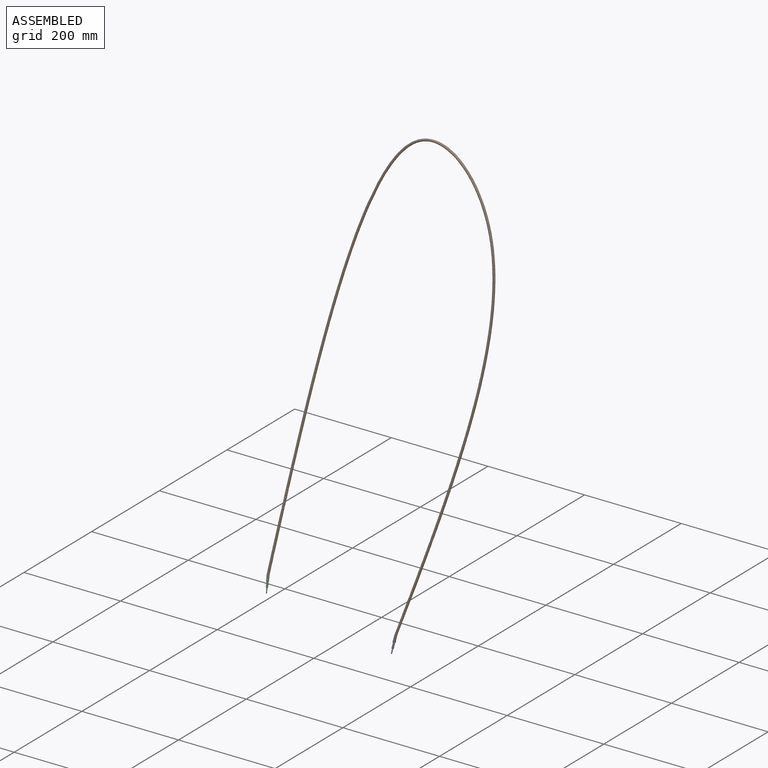
[diagram: assembled view]
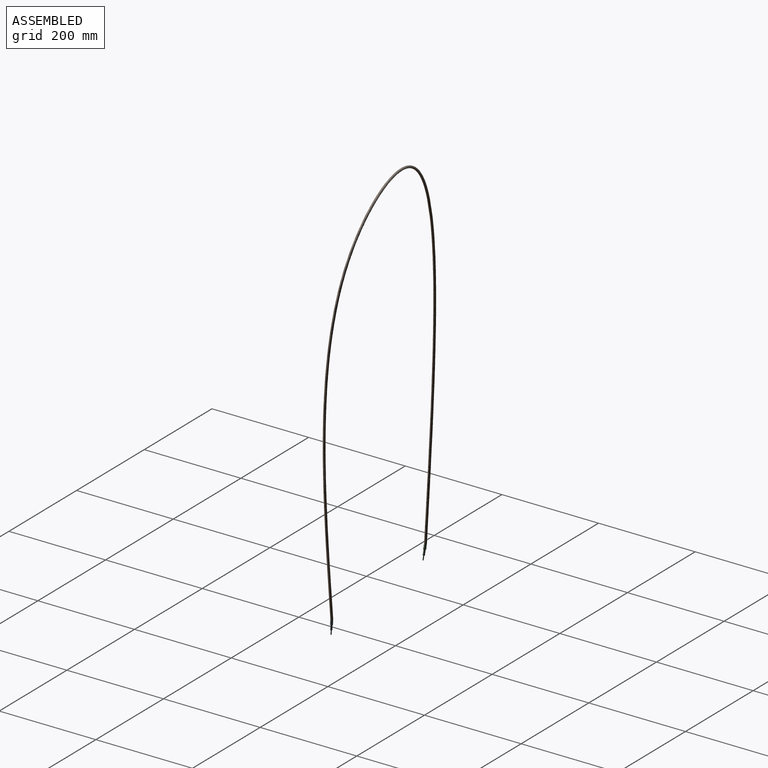
[diagram: assembled view, second angle]
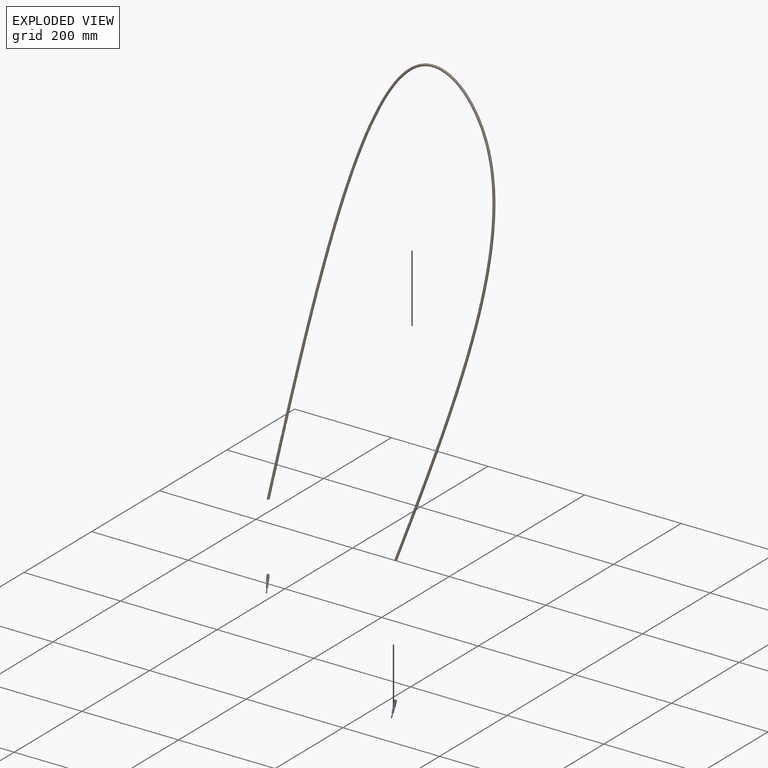
[diagram: exploded view]
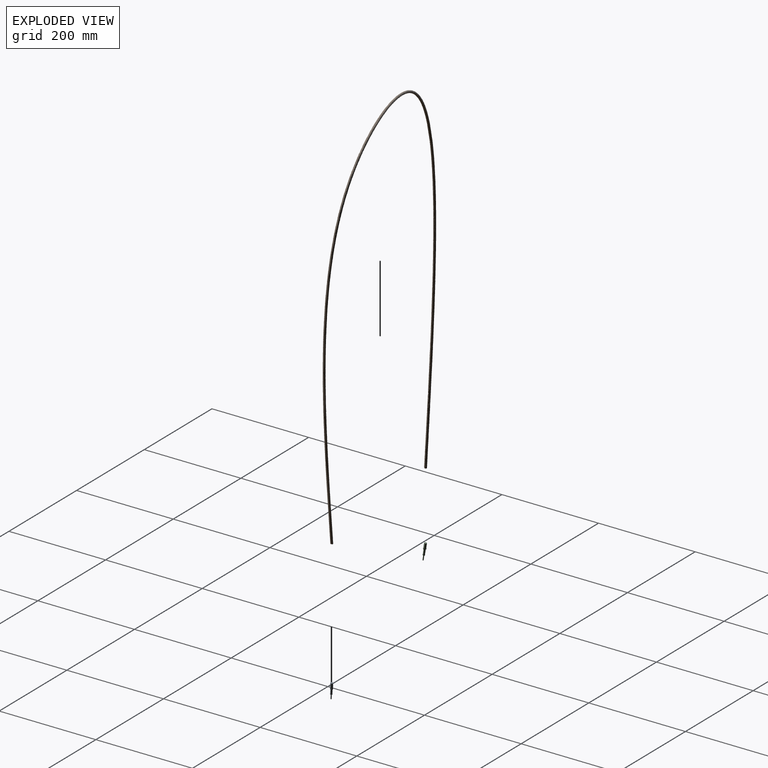
[diagram: exploded view, second angle]
ASSEMBLY  parts=3 mates=2
PART A: 31 faces, bbox 5.8x5x34 mm
  f0: cylinder r=2.5mm len=10mm, axis (0,0,1), area 157.1mm2, adj f1,f2,f3,f4,f5,f6,f14
  f1: plane 5x5mm, normal (0,0,1), area 19.6mm2, adj f0
  f2: plane 2.17x1.25mm, normal (0,0,1), area 0.3mm2, adj f0,f9,f10
  f3: plane 2.17x1.25mm, normal (0,0,1), area 0.3mm2, adj f0,f8,f9
  f4: plane 2.5x0.72mm, normal (0,0,1), area 0.3mm2, adj f0,f7,f8
  f5: plane 2.17x1.25mm, normal (0,0,1), area 0.3mm2, adj f0,f7,f12
  f6: plane 2.17x1.25mm, normal (0,0,1), area 0.3mm2, adj f0,f11,f12
  f7: plane 2.5x2.5mm, normal (-0.87,-0.5,0), area 7.2mm2, adj f4,f5,f8,f12,f13
  f8: plane 2.5x2.5mm, normal (-0.87,0.5,0), area 7.2mm2, adj f3,f4,f7,f9,f13
  f9: plane 2.89x2.5mm, normal (0,1,0), area 7.2mm2, adj f2,f3,f8,f10,f13
  f10: plane 2.5x2.5mm, normal (0.87,0.5,0), area 7.2mm2, adj f2,f9,f11,f13,f14
  f11: plane 2.5x2.5mm, normal (0.87,-0.5,0), area 7.2mm2, adj f6,f10,f12,f13,f14
  f12: plane 2.89x2.5mm, normal (0,-1,0), area 7.2mm2, adj f5,f6,f7,f11,f13
  f13: plane 5.77x5mm, normal (0,0,-1), area 10.3mm2, adj f7,f8,f9,f10,f11,f12,f15
  f14: plane 2.5x0.72mm, normal (0,0,1), area 0.3mm2, adj f0,f10,f11
  f15: cylinder r=1.9mm len=10mm, axis (0,0,1), area 119.4mm2, adj f13,f16,f17,f18,f19,f20,f21
  f16: plane 1.65x0.95mm, normal (0,0,1), area 0.2mm2, adj f15,f26,f27
  f17: plane 1.65x0.95mm, normal (0,0,1), area 0.2mm2, adj f15,f22,f27
  f18: plane 1.9x0.55mm, normal (0,0,1), area 0.2mm2, adj f15,f22,f23
  f19: plane 1.65x0.95mm, normal (0,0,1), area 0.2mm2, adj f15,f23,f24
  f20: plane 1.65x0.95mm, normal (0,0,1), area 0.2mm2, adj f15,f24,f25
  f21: plane 1.9x0.55mm, normal (0,0,1), area 0.2mm2, adj f15,f25,f26
  f22: plane 1.9x1.5mm, normal (-0.87,-0.5,0), area 3.3mm2, adj f17,f18,f23,f27,f28
  f23: plane 1.9x1.5mm, normal (-0.87,0.5,0), area 3.3mm2, adj f18,f19,f22,f24,f28
  f24: plane 2.19x1.5mm, normal (0,1,0), area 3.3mm2, adj f19,f20,f23,f25,f28
  f25: plane 1.9x1.5mm, normal (0.87,0.5,0), area 3.3mm2, adj f20,f21,f24,f26,f28
  f26: plane 1.9x1.5mm, normal (0.87,-0.5,0), area 3.3mm2, adj f16,f21,f25,f27,f28
  f27: plane 2.19x1.5mm, normal (0,-1,0), area 3.3mm2, adj f16,f17,f22,f26,f28
  f28: plane 4.39x3.8mm, normal (0,0,-1), area 9.4mm2, adj f22,f23,f24,f25,f26,f27,f29
  f29: cylinder r=1mm len=10mm, axis (0,0,1), area 62.8mm2, adj f28,f30
  f30: plane 2x2mm, normal (0,0,-1), area 3.1mm2, adj f29
PART B: 3 faces, bbox 10x872.3x331.1 mm
  f0: plane 5x5mm, normal (0,1,0), area 19.6mm2, adj f2
  f1: plane 5x4.94mm, normal (0,0.99,-0.15), area 19.6mm2, adj f2
  f2: bspline ~872.31x331.1mm, area 29229.2mm2, adj f0,f1
PART C: same geometry as A
PLACE A rot(axis=(0,0.15,0.99),90deg) t=(269.48,256.87,-44.6)mm
PLACE B rot(axis=(-0.58,-0.48,0.66),120deg) t=(269.48,256.87,-44.6)mm
PLACE C rot(axis=(-1,0,0),8.7deg) t=(1.31,263.12,-3.9)mm
MATE fastened B.f0 <-> A.f0  axis (-0.15,-0.15,-0.98) through (269.48,256.87,-44.6)mm
MATE fastened B.f1 <-> C.f0  axis (0,-0.15,-0.99) through (1.31,263.12,-3.9)mm
